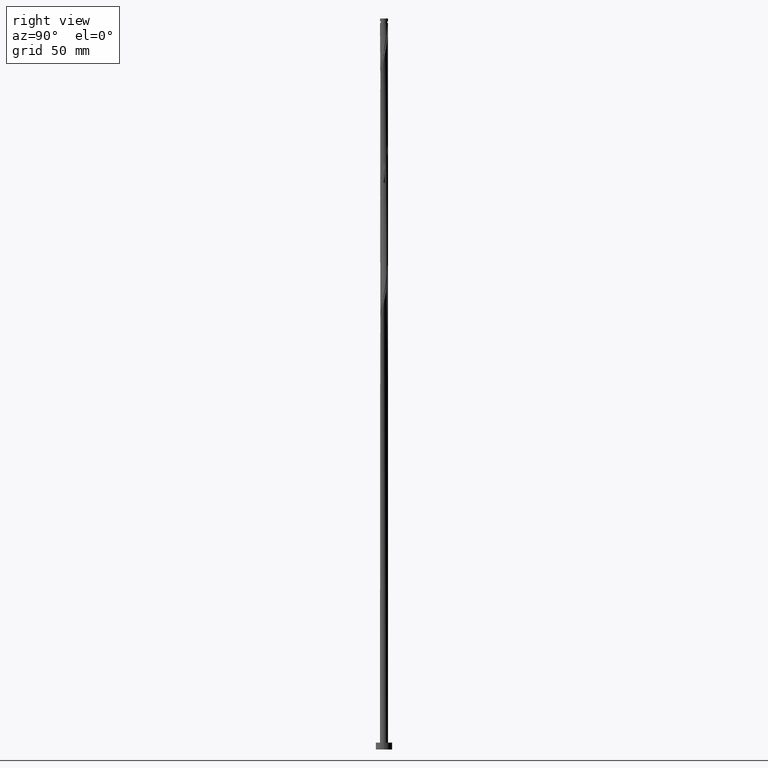
[diagram: clean part render]
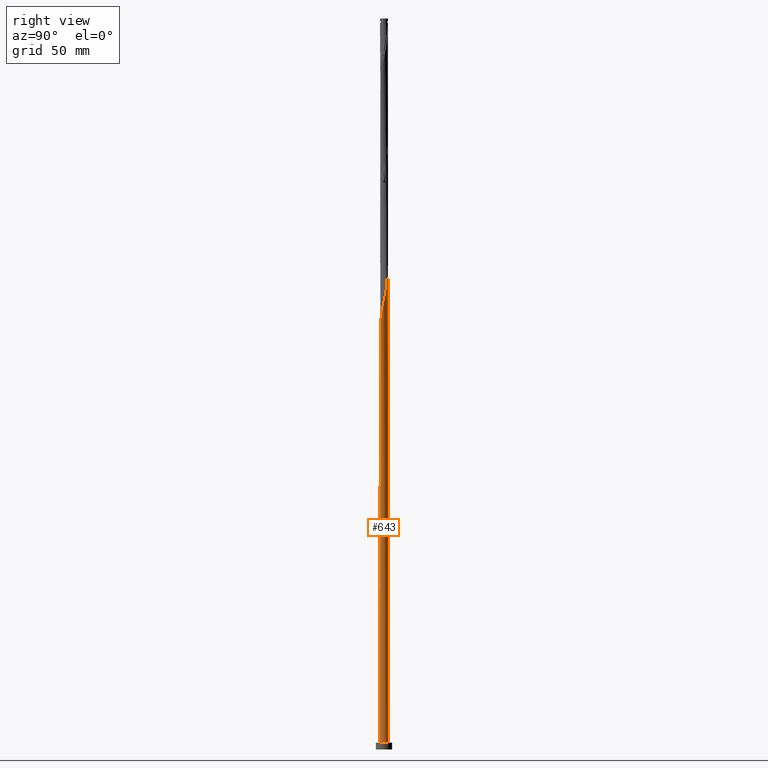
[diagram: same view with one face highlighted and labeled with its STEP entity id]
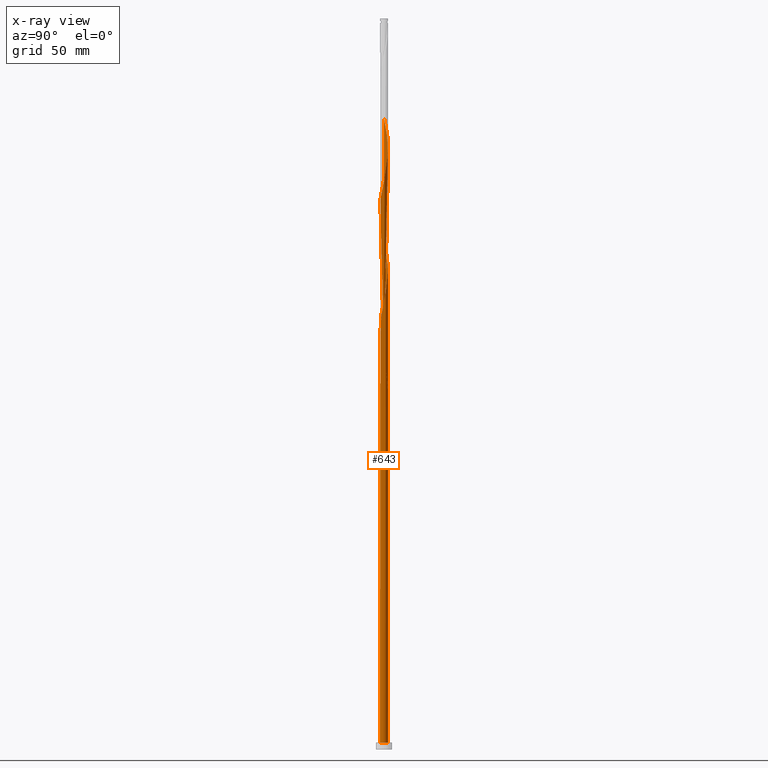
[diagram: x-ray of the same camera — body ghosted, the highlighted face saturated]
A machine part, right view. The second image highlights one B-rep face of the part: STEP entity #643.
The next image is the same camera in x-ray: the body ghosted, the highlighted face saturated — about 0% of this face is hidden behind the body in this view.
In plain terms, the highlighted cylindrical surface (bore or boss wall) has radius 1.75 mm, axis along (-0, -0, -1).
Its self-contained STEP definition (entity closure, byte-faithful):
#9 = CARTESIAN_POINT ( 'NONE',  ( -1.594509432568908869, 0.7211377603820070536, 166.7891389798090245 ) ) ;
#17 = CARTESIAN_POINT ( 'NONE',  ( 1.057869059262093625, -1.394063504097263539, 185.5391389798089108 ) ) ;
#26 = CARTESIAN_POINT ( 'NONE',  ( -1.647770669082449624, 0.6214747345873318229, 268.9766389798089676 ) ) ;
#27 = CARTESIAN_POINT ( 'NONE',  ( -1.513256721033685581, 0.9007958258480038838, 165.8516389798089392 ) ) ;
#31 = CARTESIAN_POINT ( 'NONE',  ( 0.000000000000000000, 0.000000000000000000, 3.000000000000000000 ) ) ;
#107 = CARTESIAN_POINT ( 'NONE',  ( -1.594509432568911311, -0.7211377603820073867, 223.0391389798089676 ) ) ;
#118 = CARTESIAN_POINT ( 'NONE',  ( 1.341554386234278251, -1.123713410427933601, 239.9141389798089676 ) ) ;
#126 = CARTESIAN_POINT ( 'NONE',  ( 0.7970156341411801515, 1.557968574437411435, 202.4141389798089676 ) ) ;
#127 = CARTESIAN_POINT ( 'NONE',  ( -1.274870287160838611, -1.214942292676182811, 173.3516389798089392 ) ) ;
#135 = CARTESIAN_POINT ( 'NONE',  ( 0.2392295972349328392, 1.744748756533624601, 205.2266389798089108 ) ) ;
#139 = ORIENTED_EDGE ( 'NONE', *, *, #623, .T. ) ;
#143 = CARTESIAN_POINT ( 'NONE',  ( -0.6214747345873308237, 1.647770669082447403, 160.2266389798089676 ) ) ;
#145 =( BOUNDED_CURVE ( )  B_SPLINE_CURVE ( 2, ( #1700, #970, #1271, #721, #447, #705, #568, #127, #1680, #426, #977, #997, #1382, #695, #1241, #1536, #290, #848, #1400, #712, #17, #1125, #1689, #273, #800, #1491, #1240, #1526, #387, #1223, #1205, #1087, #253, #397, #558, #1381, #828, #1805, #126, #1500, #1671, #135, #1788, #669, #1106, #1350, #264, #1231, #1779, #1518, #416, #1795, #1650, #694, #1360, #659, #244, #1769, #969, #281, #107, #1214, #837, #1389, #520, #1067, #819, #1078, #548, #1631, #944, #378, #685, #530, #1641, #810, #935, #540, #118, #952, #678, #1508, #1372, #1095, #1659, #406, #962, #1280, #1407, #1554, #1399, #299, #1269, #162, #289, #567, #595, #171, #454, #1014, #720, #1679, #1004, #857, #730, #847, #1416, #883, #738, #26, #1114, #1708, #424, #1699, #153 ),
 .UNSPECIFIED., .F., .F. ) 
 B_SPLINE_CURVE_WITH_KNOTS ( ( 3, 2, 2, 2, 2, 2, 2, 2, 2, 2, 2, 2, 2, 2, 2, 2, 2, 2, 2, 2, 2, 2, 2, 2, 2, 2, 2, 2, 2, 2, 2, 2, 2, 2, 2, 2, 2, 2, 2, 2, 2, 2, 2, 2, 2, 2, 2, 2, 2, 2, 2, 2, 2, 2, 2, 2, 2, 3 ),
 ( 0.05453034012992217378, 0.06250000000000000000, 0.07142857142857139685, 0.08035714285714290472, 0.08928571428571430157, 0.09821428571428569843, 0.1071428571428570953, 0.1160714285714286031, 0.1250000000000000000, 0.1339285714285713969, 0.1428571428571429047, 0.1517857142857143016, 0.1607142857142856984, 0.1696428571428570953, 0.1785714285714286031, 0.1875000000000000000, 0.1964285714285713969, 0.2053571428571429047, 0.2142857142857143016, 0.2232142857142856984, 0.2321428571428570953, 0.2410714285714286031, 0.2500000000000000000, 0.2589285714285713969, 0.2678571428571429047, 0.2767857142857143016, 0.2857142857142856984, 0.2946428571428570953, 0.3035714285714286031, 0.3125000000000000000, 0.3214285714285713969, 0.3303571428571429047, 0.3392857142857143016, 0.3482142857142856984, 0.3571428571428570953, 0.3660714285714286031, 0.3750000000000000000, 0.3839285714285713969, 0.3928571428571429047, 0.4017857142857143016, 0.4107142857142856984, 0.4196428571428570953, 0.4285714285714286031, 0.4375000000000000000, 0.4464285714285713969, 0.4553571428571429047, 0.4642857142857143016, 0.4732142857142856984, 0.4821428571428570953, 0.4910714285714286031, 0.5000000000000000000, 0.5089285714285713969, 0.5178571428571427937, 0.5267857142857143016, 0.5357142857142856984, 0.5446428571428572063, 0.5535714285714286031, 0.5545303401299224166 ),
 .UNSPECIFIED. ) 
 CURVE ( )  GEOMETRIC_REPRESENTATION_ITEM ( )  RATIONAL_B_SPLINE_CURVE ( ( 0.9079949616362449349, 0.9039886423361080947, 0.9090909090909750079, 0.9033747362666497693, 0.9090909090909750079, 0.9033747362666497693, 0.9090909090909750079, 0.9033747362666497693, 0.9090909090909750079, 0.9033747362666497693, 0.9090909090909750079, 0.9033747362666497693, 0.9090909090909750079, 0.9033747362666497693, 0.9090909090909750079, 0.9033747362666497693, 0.9090909090909750079, 0.9033747362666497693, 0.9090909090909750079, 0.9033747362666497693, 0.9090909090909750079, 0.9033747362666497693, 0.9090909090909750079, 0.9033747362666497693, 0.9090909090909750079, 0.9033747362666497693, 0.9090909090909750079, 0.9033747362666497693, 0.9090909090909750079, 0.9033747362666497693, 0.9090909090909750079, 0.9033747362666497693, 0.9090909090909750079, 0.9033747362666497693, 0.9090909090909750079, 0.9033747362666497693, 0.9090909090909750079, 0.9033747362666497693, 0.9090909090909750079, 0.9033747362666497693, 0.9090909090909750079, 0.9033747362666497693, 0.9090909090909750079, 0.9033747362666497693, 0.9090909090909750079, 0.9033747362666497693, 0.9090909090909750079, 0.9033747362666497693, 0.9090909090909750079, 0.9033747362666497693, 0.9090909090909750079, 0.9033747362666497693, 0.9090909090909750079, 0.9033747362666497693, 0.9090909090909750079, 0.9033747362666497693, 0.9090909090909750079, 0.9033747362666497693, 0.9090909090909750079, 0.9033747362666497693, 0.9090909090909750079, 0.9033747362666497693, 0.9090909090909750079, 0.9033747362666497693, 0.9090909090909750079, 0.9033747362666497693, 0.9090909090909750079, 0.9033747362666497693, 0.9090909090909750079, 0.9033747362666497693, 0.9090909090909750079, 0.9033747362666497693, 0.9090909090909750079, 0.9033747362666497693, 0.9090909090909750079, 0.9033747362666497693, 0.9090909090909750079, 0.9033747362666497693, 0.9090909090909750079, 0.9033747362666497693, 0.9090909090909750079, 0.9033747362666497693, 0.9090909090909750079, 0.9033747362666497693, 0.9090909090909750079, 0.9033747362666497693, 0.9090909090909750079, 0.9033747362666497693, 0.9090909090909750079, 0.9033747362666497693, 0.9090909090909750079, 0.9033747362666497693, 0.9090909090909750079, 0.9033747362666497693, 0.9090909090909750079, 0.9033747362666497693, 0.9090909090909750079, 0.9033747362666497693, 0.9090909090909750079, 0.9033747362666497693, 0.9090909090909750079, 0.9033747362666497693, 0.9090909090909750079, 0.9033747362666497693, 0.9090909090909750079, 0.9033747362666497693, 0.9090909090909750079, 0.9033747362666497693, 0.9090909090909750079, 0.9033747362666497693, 0.9090909090909750079, 0.9033747362666497693, 0.9090909090909750079, 0.9084770030215165715, 0.9079949616362448239 ) ) 
 REPRESENTATION_ITEM ( '' )  );
#149 = CARTESIAN_POINT ( 'NONE',  ( -1.750000000000002220, -2.156774273860430625E-15, 166.9896219019029502 ) ) ;
#151 = EDGE_CURVE ( 'NONE', #1626, #824, #1449, .T. ) ;
#153 = CARTESIAN_POINT ( 'NONE',  ( -1.750000000000002220, 5.410592901552984017E-16, 271.9896219019029218 ) ) ;
#154 = CARTESIAN_POINT ( 'NONE',  ( -1.749999999999999334, 0.1758816176703672240, 169.5003849787513275 ) ) ;
#162 = CARTESIAN_POINT ( 'NONE',  ( 0.9725565336950284800, 1.468166479792373025, 253.9766389798089676 ) ) ;
#163 = CARTESIAN_POINT ( 'NONE',  ( 0.000000000000000000, 0.000000000000000000, 155.5391389798089392 ) ) ;
#167 = DIRECTION ( 'NONE',  ( 0.000000000000000000, 0.000000000000000000, 1.000000000000000000 ) ) ;
#171 = CARTESIAN_POINT ( 'NONE',  ( 0.2392295972349328392, 1.744748756533624601, 257.7266389798089108 ) ) ;
#185 = DIRECTION ( 'NONE',  ( -0.000000000000000000, -0.000000000000000000, -1.000000000000000000 ) ) ;
#203 = CIRCLE ( 'NONE', #319, 1.750000000000000000 ) ;
#222 = ORIENTED_EDGE ( 'NONE', *, *, #427, .T. ) ;
#231 = VERTEX_POINT ( 'NONE', #149 ) ;
#244 = CARTESIAN_POINT ( 'NONE',  ( -1.749493306214747523, 0.04210904308815170000, 219.2891389798089392 ) ) ;
#250 = VERTEX_POINT ( 'NONE', #873 ) ;
#253 = CARTESIAN_POINT ( 'NONE',  ( 1.594509432568911311, 0.7211377603820072757, 196.7891389798089392 ) ) ;
#259 = AXIS2_PLACEMENT_3D ( 'NONE', #1268, #1698, #995 ) ;
#260 = CARTESIAN_POINT ( 'NONE',  ( -1.696259712808037445, 0.4303521659111320119, 164.9141389798089392 ) ) ;
#264 = CARTESIAN_POINT ( 'NONE',  ( -0.7211377603820073867, 1.594509432568911311, 209.9141389798089676 ) ) ;
#265 = CARTESIAN_POINT ( 'NONE',  ( -1.274870287160836391, 1.214942292676181479, 163.9766389798089961 ) ) ;
#273 = CARTESIAN_POINT ( 'NONE',  ( 1.468166479792373247, -0.9725565336950284800, 188.3516389798089108 ) ) ;
#281 = CARTESIAN_POINT ( 'NONE',  ( -1.675762144104133489, -0.5414796949160102235, 222.1016389798089676 ) ) ;
#283 = DIRECTION ( 'NONE',  ( -0.000000000000000000, -0.000000000000000000, -1.000000000000000000 ) ) ;
#289 = CARTESIAN_POINT ( 'NONE',  ( 0.7970156341411801515, 1.557968574437411435, 254.9141389798089676 ) ) ;
#290 = CARTESIAN_POINT ( 'NONE',  ( 0.3482456029873196579, -1.715000000000001856, 181.7891389798089676 ) ) ;
#299 = CARTESIAN_POINT ( 'NONE',  ( 1.274870287160838611, 1.214942292676182367, 252.1016389798089108 ) ) ;
#300 = DIRECTION ( 'NONE',  ( 0.000000000000000000, -0.000000000000000000, -1.000000000000000000 ) ) ;
#319 = AXIS2_PLACEMENT_3D ( 'NONE', #163, #300, #438 ) ;
#347 = ORIENTED_EDGE ( 'NONE', *, *, #588, .F. ) ;
#370 = VERTEX_POINT ( 'NONE', #445 ) ;
#378 = CARTESIAN_POINT ( 'NONE',  ( 0.1550115110586289258, -1.754237855895869780, 233.3516389798089108 ) ) ;
#387 = CARTESIAN_POINT ( 'NONE',  ( 1.749493306214747523, -0.04210904308815196367, 193.0391389798089961 ) ) ;
#397 = CARTESIAN_POINT ( 'NONE',  ( 1.513256721033688024, 0.9007958258480041058, 197.7266389798088824 ) ) ;
#404 = CARTESIAN_POINT ( 'NONE',  ( -1.557968574437411657, 0.7970156341411798184, 163.0391389798089676 ) ) ;
#406 = CARTESIAN_POINT ( 'NONE',  ( 1.754237855895869780, 0.1550115110586288980, 246.4766389798089392 ) ) ;
#407 = CARTESIAN_POINT ( 'NONE',  ( -0.2392295972349318955, 1.744748756533622602, 158.3516389798089108 ) ) ;
#416 = CARTESIAN_POINT ( 'NONE',  ( -1.341554386234278251, 1.123713410427933601, 213.6641389798089961 ) ) ;
#417 = CARTESIAN_POINT ( 'NONE',  ( -1.394063504097261541, 1.057869059262092959, 164.9141389798089392 ) ) ;
#424 = CARTESIAN_POINT ( 'NONE',  ( -1.749493306214747523, 0.04210904308815170000, 271.7891389798089108 ) ) ;
#426 = CARTESIAN_POINT ( 'NONE',  ( -0.9725565336950283690, -1.468166479792373247, 175.2266389798089392 ) ) ;
#427 = EDGE_CURVE ( 'NONE', #824, #1626, #842, .T. ) ;
#438 = DIRECTION ( 'NONE',  ( -1.000000000000000000, 0.000000000000000000, 0.000000000000000000 ) ) ;
#445 = CARTESIAN_POINT ( 'NONE',  ( -0.3482456029873194359, 1.715000000000002078, 155.5391389798089392 ) ) ;
#447 = CARTESIAN_POINT ( 'NONE',  ( -1.594509432568911311, -0.7211377603820073867, 170.5391389798089392 ) ) ;
#454 = CARTESIAN_POINT ( 'NONE',  ( 0.04210904308815201919, 1.749493306214747301, 258.6641389798089676 ) ) ;
#477 = EDGE_CURVE ( 'NONE', #250, #1339, #1563, .T. ) ;
#491 = ORIENTED_EDGE ( 'NONE', *, *, #151, .T. ) ;
#492 = CARTESIAN_POINT ( 'NONE',  ( -1.750000000000000000, 0.000000000000000000, 315.0000000000000000 ) ) ;
#496 = VECTOR ( 'NONE', #1005, 1000.000000000000000 ) ;
#520 = CARTESIAN_POINT ( 'NONE',  ( -1.123713410427933601, -1.341554386234278251, 226.7891389798090245 ) ) ;
#530 = CARTESIAN_POINT ( 'NONE',  ( 0.5414796949160100015, -1.675762144104133489, 235.2266389798089392 ) ) ;
#537 = ORIENTED_EDGE ( 'NONE', *, *, #722, .F. ) ;
#538 = CARTESIAN_POINT ( 'NONE',  ( -1.214942292676183033, 1.274870287160838611, 160.2266389798089676 ) ) ;
#540 = CARTESIAN_POINT ( 'NONE',  ( 1.214942292676182811, -1.274870287160838611, 238.9766389798089108 ) ) ;
#546 = CARTESIAN_POINT ( 'NONE',  ( -0.5414796949160103345, 1.675762144104133489, 156.4766389798089961 ) ) ;
#548 = CARTESIAN_POINT ( 'NONE',  ( -0.4303521659111322895, -1.696259712808037223, 230.5391389798089676 ) ) ;
#549 = CARTESIAN_POINT ( 'NONE',  ( 0.1550115110586292588, 1.754237855895867559, 156.4766389798089108 ) ) ;
#555 = VECTOR ( 'NONE', #185, 1000.000000000000000 ) ;
#556 = CARTESIAN_POINT ( 'NONE',  ( -1.750000000000002220, -2.156774273860430625E-15, 166.9896219019029502 ) ) ;
#558 = CARTESIAN_POINT ( 'NONE',  ( 1.394063504097263761, 1.057869059262093625, 198.6641389798089676 ) ) ;
#559 = CARTESIAN_POINT ( 'NONE',  ( -0.7970156341411784862, 1.557968574437410103, 161.1641389798089961 ) ) ;
#567 = CARTESIAN_POINT ( 'NONE',  ( 0.6214747345873321560, 1.647770669082449402, 255.8516389798088824 ) ) ;
#568 = CARTESIAN_POINT ( 'NONE',  ( -1.394063504097263539, -1.057869059262093625, 172.4141389798088824 ) ) ;
#570 =( BOUNDED_CURVE ( )  B_SPLINE_CURVE ( 2, ( #1115, #154, #838, #1390, #9, #27, #417, #265, #1232, #829, #559, #143, #1672, #407, #1408, #549, #1261 ),
 .UNSPECIFIED., .F., .T. ) 
 B_SPLINE_CURVE_WITH_KNOTS ( ( 3, 2, 2, 2, 2, 2, 2, 2, 3 ),
 ( 0.9295303401299221946, 0.9375000000000000000, 0.9464285714285713969, 0.9553571428571429047, 0.9642857142857143016, 0.9732142857142856984, 0.9821428571428570953, 0.9910714285714286031, 1.000000000000000000 ),
 .UNSPECIFIED. ) 
 CURVE ( )  GEOMETRIC_REPRESENTATION_ITEM ( )  RATIONAL_B_SPLINE_CURVE ( ( 0.9079949616362394949, 0.9039886423361027656, 0.9090909090909695678, 0.9033747362666444403, 0.9090909090909695678, 0.9033747362666444403, 0.9090909090909695678, 0.9033747362666444403, 0.9090909090909695678, 0.9033747362666444403, 0.9090909090909695678, 0.9033747362666444403, 0.9090909090909695678, 0.9033747362666444403, 0.9090909090909695678, 0.9033747362666444403, 0.9090909090909695678 ) ) 
 REPRESENTATION_ITEM ( '' )  );
#586 = CARTESIAN_POINT ( 'NONE',  ( 1.750000000000000000, 0.000000000000000000, 3.000000000000000000 ) ) ;
#588 = EDGE_CURVE ( 'NONE', #370, #231, #1622, .T. ) ;
#595 = CARTESIAN_POINT ( 'NONE',  ( 0.4303521659111325115, 1.696259712808037223, 256.7891389798089108 ) ) ;
#602 = CARTESIAN_POINT ( 'NONE',  ( 0.3482456029873201020, 1.714999999999999636, 155.5391389798089392 ) ) ;
#623 = EDGE_CURVE ( 'NONE', #370, #923, #203, .T. ) ;
#643 = ADVANCED_FACE ( 'NONE', ( #1096 ), #858, .T. ) ;
#659 = CARTESIAN_POINT ( 'NONE',  ( -1.744748756533624601, 0.2392295972349325617, 218.3516389798089108 ) ) ;
#669 = CARTESIAN_POINT ( 'NONE',  ( -0.1550115110586288147, 1.754237855895869780, 207.1016389798089676 ) ) ;
#678 = CARTESIAN_POINT ( 'NONE',  ( 1.557968574437411435, -0.7970156341411801515, 241.7891389798089961 ) ) ;
#685 = CARTESIAN_POINT ( 'NONE',  ( 0.3482456029873196579, -1.715000000000001856, 234.2891389798089676 ) ) ;
#694 = CARTESIAN_POINT ( 'NONE',  ( -1.647770669082449624, 0.6214747345873318229, 216.4766389798089961 ) ) ;
#695 = CARTESIAN_POINT ( 'NONE',  ( -0.2392295972349327005, -1.744748756533624601, 178.9766389798089676 ) ) ;
#705 = CARTESIAN_POINT ( 'NONE',  ( -1.513256721033688024, -0.9007958258480042169, 171.4766389798089108 ) ) ;
#712 = CARTESIAN_POINT ( 'NONE',  ( 0.9007958258480042169, -1.513256721033688024, 184.6016389798089392 ) ) ;
#720 = CARTESIAN_POINT ( 'NONE',  ( -0.3482456029873194359, 1.715000000000001856, 260.5391389798089676 ) ) ;
#721 = CARTESIAN_POINT ( 'NONE',  ( -1.675762144104133489, -0.5414796949160102235, 169.6016389798089108 ) ) ;
#722 = EDGE_CURVE ( 'NONE', #1339, #923, #570, .T. ) ;
#725 = DIRECTION ( 'NONE',  ( 1.000000000000000000, 0.000000000000000000, 0.000000000000000000 ) ) ;
#730 = CARTESIAN_POINT ( 'NONE',  ( -1.057869059262093847, 1.394063504097263539, 264.2891389798089108 ) ) ;
#735 = LINE ( 'NONE', #1428, #555 ) ;
#738 = CARTESIAN_POINT ( 'NONE',  ( -1.557968574437411657, 0.7970156341411798184, 268.0391389798090245 ) ) ;
#751 = EDGE_CURVE ( 'NONE', #231, #250, #145, .T. ) ;
#789 = ORIENTED_EDGE ( 'NONE', *, *, #751, .F. ) ;
#800 = CARTESIAN_POINT ( 'NONE',  ( 1.557968574437411435, -0.7970156341411801515, 189.2891389798089392 ) ) ;
#807 = EDGE_LOOP ( 'NONE', ( #833, #789, #1168, #491, #222, #816, #347, #139, #537 ) ) ;
#810 = CARTESIAN_POINT ( 'NONE',  ( 0.9007958258480042169, -1.513256721033688024, 237.1016389798089392 ) ) ;
#816 = ORIENTED_EDGE ( 'NONE', *, *, #1203, .F. ) ;
#817 = CARTESIAN_POINT ( 'NONE',  ( -1.744748756533624601, 0.2392295972349325617, 165.8516389798089108 ) ) ;
#819 = CARTESIAN_POINT ( 'NONE',  ( -0.7970156341411798184, -1.557968574437411435, 228.6641389798089392 ) ) ;
#824 = VERTEX_POINT ( 'NONE', #586 ) ;
#826 = CARTESIAN_POINT ( 'NONE',  ( -0.3482456029873194359, 1.715000000000002078, 155.5391389798089392 ) ) ;
#828 = CARTESIAN_POINT ( 'NONE',  ( 1.123713410427933601, 1.341554386234278251, 200.5391389798089392 ) ) ;
#829 = CARTESIAN_POINT ( 'NONE',  ( -0.9725565336950267037, 1.468166479792371915, 162.1016389798089676 ) ) ;
#833 = ORIENTED_EDGE ( 'NONE', *, *, #477, .F. ) ;
#835 = CARTESIAN_POINT ( 'NONE',  ( -0.7211377603820073867, 1.594509432568911311, 157.4141389798089961 ) ) ;
#837 = CARTESIAN_POINT ( 'NONE',  ( -1.394063504097263539, -1.057869059262093625, 224.9141389798089392 ) ) ;
#838 = CARTESIAN_POINT ( 'NONE',  ( -1.714999999999999636, 0.3482456029873197689, 168.6641389798089392 ) ) ;
#842 = CIRCLE ( 'NONE', #259, 1.750000000000000000 ) ;
#847 = CARTESIAN_POINT ( 'NONE',  ( -1.214942292676183033, 1.274870287160838611, 265.2266389798089108 ) ) ;
#848 = CARTESIAN_POINT ( 'NONE',  ( 0.5414796949160100015, -1.675762144104133489, 182.7266389798089108 ) ) ;
#857 = CARTESIAN_POINT ( 'NONE',  ( -0.9007958258480044389, 1.513256721033687802, 263.3516389798089108 ) ) ;
#858 = CYLINDRICAL_SURFACE ( 'NONE', #1663, 1.750000000000000000 ) ;
#873 = CARTESIAN_POINT ( 'NONE',  ( -1.750000000000002220, 5.410592901552984017E-16, 271.9896219019029218 ) ) ;
#883 = CARTESIAN_POINT ( 'NONE',  ( -1.468166479792373469, 0.9725565336950283690, 267.1016389798089108 ) ) ;
#923 = VERTEX_POINT ( 'NONE', #602 ) ;
#935 = CARTESIAN_POINT ( 'NONE',  ( 1.057869059262093625, -1.394063504097263539, 238.0391389798089676 ) ) ;
#938 = CARTESIAN_POINT ( 'NONE',  ( -1.749999999999999556, -2.332152112738368379E-15, 170.3386560577150419 ) ) ;
#944 = CARTESIAN_POINT ( 'NONE',  ( -0.04210904308815181102, -1.749493306214747523, 232.4141389798089392 ) ) ;
#952 = CARTESIAN_POINT ( 'NONE',  ( 1.468166479792373247, -0.9725565336950284800, 240.8516389798089392 ) ) ;
#962 = CARTESIAN_POINT ( 'NONE',  ( 1.715000000000001856, 0.3482456029873196024, 247.4141389798089676 ) ) ;
#967 = CARTESIAN_POINT ( 'NONE',  ( -0.9007958258480044389, 1.513256721033687802, 158.3516389798089392 ) ) ;
#969 = CARTESIAN_POINT ( 'NONE',  ( -1.715000000000001856, -0.3482456029873198244, 221.1641389798089108 ) ) ;
#970 = CARTESIAN_POINT ( 'NONE',  ( -1.750000000000001998, -0.1758816176703665579, 167.8278929808665225 ) ) ;
#977 = CARTESIAN_POINT ( 'NONE',  ( -0.7970156341411798184, -1.557968574437411435, 176.1641389798089392 ) ) ;
#995 = DIRECTION ( 'NONE',  ( 1.000000000000000000, 0.000000000000000000, 0.000000000000000000 ) ) ;
#997 = CARTESIAN_POINT ( 'NONE',  ( -0.6214747345873319340, -1.647770669082449624, 177.1016389798089961 ) ) ;
#1004 = CARTESIAN_POINT ( 'NONE',  ( -0.7211377603820073867, 1.594509432568911311, 262.4141389798089676 ) ) ;
#1005 = DIRECTION ( 'NONE',  ( -0.000000000000000000, -0.000000000000000000, -1.000000000000000000 ) ) ;
#1014 = CARTESIAN_POINT ( 'NONE',  ( -0.1550115110586288147, 1.754237855895869780, 259.6016389798088539 ) ) ;
#1067 = CARTESIAN_POINT ( 'NONE',  ( -0.9725565336950283690, -1.468166479792373247, 227.7266389798089108 ) ) ;
#1078 = CARTESIAN_POINT ( 'NONE',  ( -0.6214747345873319340, -1.647770669082449624, 229.6016389798089392 ) ) ;
#1087 = CARTESIAN_POINT ( 'NONE',  ( 1.675762144104133489, 0.5414796949160100015, 195.8516389798089108 ) ) ;
#1093 = CARTESIAN_POINT ( 'NONE',  ( -1.057869059262093847, 1.394063504097263539, 159.2891389798089676 ) ) ;
#1095 = CARTESIAN_POINT ( 'NONE',  ( 1.744748756533624601, -0.2392295972349328392, 244.6016389798089676 ) ) ;
#1096 = FACE_OUTER_BOUND ( 'NONE', #807, .T. ) ;
#1106 = CARTESIAN_POINT ( 'NONE',  ( -0.3482456029873194359, 1.715000000000001856, 208.0391389798089961 ) ) ;
#1114 = CARTESIAN_POINT ( 'NONE',  ( -1.696259712808037445, 0.4303521659111320119, 269.9141389798090245 ) ) ;
#1115 = CARTESIAN_POINT ( 'NONE',  ( -1.749999999999999556, -2.332152112738368379E-15, 170.3386560577150703 ) ) ;
#1125 = CARTESIAN_POINT ( 'NONE',  ( 1.214942292676182811, -1.274870287160838611, 186.4766389798089676 ) ) ;
#1168 = ORIENTED_EDGE ( 'NONE', *, *, #1203, .T. ) ;
#1203 = EDGE_CURVE ( 'NONE', #231, #1626, #735, .T. ) ;
#1205 = CARTESIAN_POINT ( 'NONE',  ( 1.715000000000001856, 0.3482456029873196024, 194.9141389798089961 ) ) ;
#1214 = CARTESIAN_POINT ( 'NONE',  ( -1.513256721033688024, -0.9007958258480042169, 223.9766389798089392 ) ) ;
#1223 = CARTESIAN_POINT ( 'NONE',  ( 1.754237855895869780, 0.1550115110586288980, 193.9766389798088824 ) ) ;
#1229 = CARTESIAN_POINT ( 'NONE',  ( -1.750000000000002665, 0.02105757004117920703, 166.8892592136778887 ) ) ;
#1231 = CARTESIAN_POINT ( 'NONE',  ( -0.9007958258480044389, 1.513256721033687802, 210.8516389798090245 ) ) ;
#1232 = CARTESIAN_POINT ( 'NONE',  ( -1.123713410427931603, 1.341554386234276919, 163.0391389798090245 ) ) ;
#1238 = CARTESIAN_POINT ( 'NONE',  ( -1.341554386234278251, 1.123713410427933601, 161.1641389798089392 ) ) ;
#1240 = CARTESIAN_POINT ( 'NONE',  ( 1.696259712808037223, -0.4303521659111324005, 191.1641389798089392 ) ) ;
#1241 = CARTESIAN_POINT ( 'NONE',  ( -0.04210904308815181102, -1.749493306214747523, 179.9141389798089676 ) ) ;
#1261 = CARTESIAN_POINT ( 'NONE',  ( 0.3482456029873201020, 1.714999999999999636, 155.5391389798089392 ) ) ;
#1268 = CARTESIAN_POINT ( 'NONE',  ( 0.000000000000000000, 0.000000000000000000, 3.000000000000000000 ) ) ;
#1269 = CARTESIAN_POINT ( 'NONE',  ( 1.123713410427933601, 1.341554386234278251, 253.0391389798089392 ) ) ;
#1271 = CARTESIAN_POINT ( 'NONE',  ( -1.715000000000001856, -0.3482456029873198244, 168.6641389798089108 ) ) ;
#1280 = CARTESIAN_POINT ( 'NONE',  ( 1.675762144104133489, 0.5414796949160100015, 248.3516389798089392 ) ) ;
#1339 = VERTEX_POINT ( 'NONE', #938 ) ;
#1350 = CARTESIAN_POINT ( 'NONE',  ( -0.5414796949160103345, 1.675762144104133489, 208.9766389798088824 ) ) ;
#1360 = CARTESIAN_POINT ( 'NONE',  ( -1.696259712808037445, 0.4303521659111320119, 217.4141389798089392 ) ) ;
#1372 = CARTESIAN_POINT ( 'NONE',  ( 1.696259712808037223, -0.4303521659111324005, 243.6641389798089676 ) ) ;
#1379 = CARTESIAN_POINT ( 'NONE',  ( -1.749493306214747523, 0.04210904308815170000, 166.7891389798090245 ) ) ;
#1381 = CARTESIAN_POINT ( 'NONE',  ( 1.274870287160838611, 1.214942292676182367, 199.6016389798089108 ) ) ;
#1382 = CARTESIAN_POINT ( 'NONE',  ( -0.4303521659111322895, -1.696259712808037223, 178.0391389798089676 ) ) ;
#1389 = CARTESIAN_POINT ( 'NONE',  ( -1.274870287160838611, -1.214942292676182811, 225.8516389798089392 ) ) ;
#1390 = CARTESIAN_POINT ( 'NONE',  ( -1.675762144104131490, 0.5414796949160098904, 167.7266389798089961 ) ) ;
#1399 = CARTESIAN_POINT ( 'NONE',  ( 1.394063504097263761, 1.057869059262093625, 251.1641389798089961 ) ) ;
#1400 = CARTESIAN_POINT ( 'NONE',  ( 0.7211377603820072757, -1.594509432568911311, 183.6641389798089676 ) ) ;
#1407 = CARTESIAN_POINT ( 'NONE',  ( 1.594509432568911311, 0.7211377603820072757, 249.2891389798089392 ) ) ;
#1408 = CARTESIAN_POINT ( 'NONE',  ( -0.04210904308815131142, 1.749493306214745303, 157.4141389798089961 ) ) ;
#1416 = CARTESIAN_POINT ( 'NONE',  ( -1.341554386234278251, 1.123713410427933601, 266.1641389798089676 ) ) ;
#1428 = CARTESIAN_POINT ( 'NONE',  ( -1.750000000000000000, 0.000000000000000000, 315.0000000000000000 ) ) ;
#1449 = CIRCLE ( 'NONE', #1477, 1.750000000000000000 ) ;
#1477 = AXIS2_PLACEMENT_3D ( 'NONE', #31, #167, #725 ) ;
#1491 = CARTESIAN_POINT ( 'NONE',  ( 1.647770669082449624, -0.6214747345873319340, 190.2266389798089392 ) ) ;
#1500 = CARTESIAN_POINT ( 'NONE',  ( 0.6214747345873321560, 1.647770669082449402, 203.3516389798089392 ) ) ;
#1503 = CARTESIAN_POINT ( 'NONE',  ( -1.750000000000000000, 0.000000000000000000, 3.000000000000000000 ) ) ;
#1508 = CARTESIAN_POINT ( 'NONE',  ( 1.647770669082449624, -0.6214747345873319340, 242.7266389798089108 ) ) ;
#1518 = CARTESIAN_POINT ( 'NONE',  ( -1.214942292676183033, 1.274870287160838611, 212.7266389798089392 ) ) ;
#1526 = CARTESIAN_POINT ( 'NONE',  ( 1.744748756533624601, -0.2392295972349328392, 192.1016389798089108 ) ) ;
#1536 = CARTESIAN_POINT ( 'NONE',  ( 0.1550115110586289258, -1.754237855895869780, 180.8516389798089392 ) ) ;
#1554 = CARTESIAN_POINT ( 'NONE',  ( 1.513256721033688024, 0.9007958258480041058, 250.2266389798089676 ) ) ;
#1563 = LINE ( 'NONE', #492, #496 ) ;
#1622 =( BOUNDED_CURVE ( )  B_SPLINE_CURVE ( 2, ( #826, #546, #835, #967, #1093, #538, #1238, #1803, #404, #1657, #260, #817, #1379, #1229, #556 ),
 .UNSPECIFIED., .F., .F. ) 
 B_SPLINE_CURVE_WITH_KNOTS ( ( 3, 2, 2, 2, 2, 2, 2, 3 ),
 ( 0.000000000000000000, 0.008928571428571396851, 0.01785714285714290472, 0.02678571428571430157, 0.03571428571428569843, 0.04464285714285709528, 0.05357142857142860315, 0.05453034012992217378 ),
 .UNSPECIFIED. ) 
 CURVE ( )  GEOMETRIC_REPRESENTATION_ITEM ( )  RATIONAL_B_SPLINE_CURVE ( ( 0.9090909090909750079, 0.9033747362666497693, 0.9090909090909750079, 0.9033747362666497693, 0.9090909090909750079, 0.9033747362666497693, 0.9090909090909750079, 0.9033747362666497693, 0.9090909090909750079, 0.9033747362666497693, 0.9090909090909750079, 0.9033747362666497693, 0.9090909090909750079, 0.9084770030215166825, 0.9079949616362449349 ) ) 
 REPRESENTATION_ITEM ( '' )  );
#1626 = VERTEX_POINT ( 'NONE', #1503 ) ;
#1631 = CARTESIAN_POINT ( 'NONE',  ( -0.2392295972349327005, -1.744748756533624601, 231.4766389798089676 ) ) ;
#1641 = CARTESIAN_POINT ( 'NONE',  ( 0.7211377603820072757, -1.594509432568911311, 236.1641389798089108 ) ) ;
#1650 = CARTESIAN_POINT ( 'NONE',  ( -1.557968574437411657, 0.7970156341411798184, 215.5391389798089676 ) ) ;
#1657 = CARTESIAN_POINT ( 'NONE',  ( -1.647770669082449624, 0.6214747345873318229, 163.9766389798089392 ) ) ;
#1659 = CARTESIAN_POINT ( 'NONE',  ( 1.749493306214747523, -0.04210904308815196367, 245.5391389798089108 ) ) ;
#1660 = DIRECTION ( 'NONE',  ( -1.000000000000000000, 0.000000000000000000, 0.000000000000000000 ) ) ;
#1663 = AXIS2_PLACEMENT_3D ( 'NONE', #1796, #283, #1660 ) ;
#1671 = CARTESIAN_POINT ( 'NONE',  ( 0.4303521659111325115, 1.696259712808037223, 204.2891389798089392 ) ) ;
#1672 = CARTESIAN_POINT ( 'NONE',  ( -0.4303521659111312903, 1.696259712808035447, 159.2891389798089676 ) ) ;
#1679 = CARTESIAN_POINT ( 'NONE',  ( -0.5414796949160103345, 1.675762144104133489, 261.4766389798089676 ) ) ;
#1680 = CARTESIAN_POINT ( 'NONE',  ( -1.123713410427933601, -1.341554386234278251, 174.2891389798089676 ) ) ;
#1689 = CARTESIAN_POINT ( 'NONE',  ( 1.341554386234278251, -1.123713410427933601, 187.4141389798089392 ) ) ;
#1698 = DIRECTION ( 'NONE',  ( 0.000000000000000000, 0.000000000000000000, 1.000000000000000000 ) ) ;
#1699 = CARTESIAN_POINT ( 'NONE',  ( -1.750000000000002665, 0.02105757004117387102, 271.8892592136778035 ) ) ;
#1700 = CARTESIAN_POINT ( 'NONE',  ( -1.750000000000002220, -2.156774273860430625E-15, 166.9896219019029502 ) ) ;
#1708 = CARTESIAN_POINT ( 'NONE',  ( -1.744748756533624601, 0.2392295972349325617, 270.8516389798089108 ) ) ;
#1769 = CARTESIAN_POINT ( 'NONE',  ( -1.754237855895869780, -0.1550115110586290923, 220.2266389798089961 ) ) ;
#1779 = CARTESIAN_POINT ( 'NONE',  ( -1.057869059262093847, 1.394063504097263539, 211.7891389798089392 ) ) ;
#1788 = CARTESIAN_POINT ( 'NONE',  ( 0.04210904308815201919, 1.749493306214747301, 206.1641389798089676 ) ) ;
#1795 = CARTESIAN_POINT ( 'NONE',  ( -1.468166479792373469, 0.9725565336950283690, 214.6016389798089676 ) ) ;
#1796 = CARTESIAN_POINT ( 'NONE',  ( 0.000000000000000000, 0.000000000000000000, 315.0000000000000000 ) ) ;
#1803 = CARTESIAN_POINT ( 'NONE',  ( -1.468166479792373469, 0.9725565336950283690, 162.1016389798089108 ) ) ;
#1805 = CARTESIAN_POINT ( 'NONE',  ( 0.9725565336950284800, 1.468166479792373025, 201.4766389798089108 ) ) ;